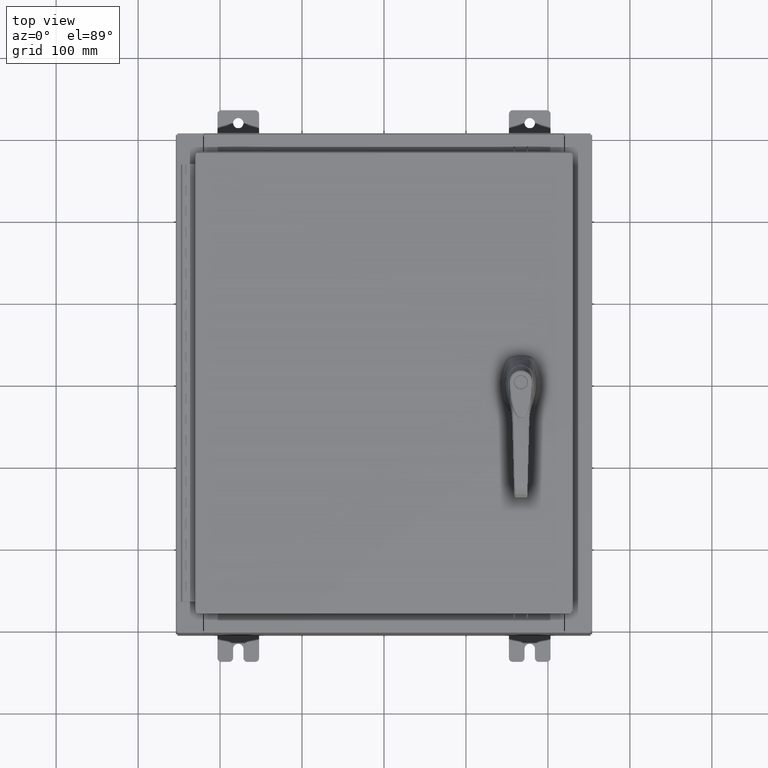
[diagram: clean part render]
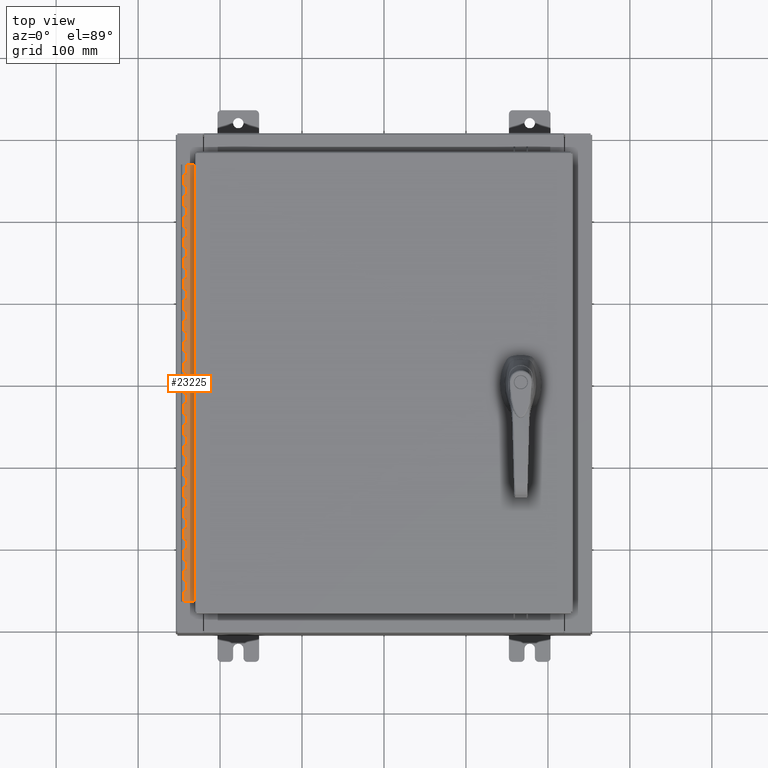
[diagram: same view with one face highlighted and labeled with its STEP entity id]
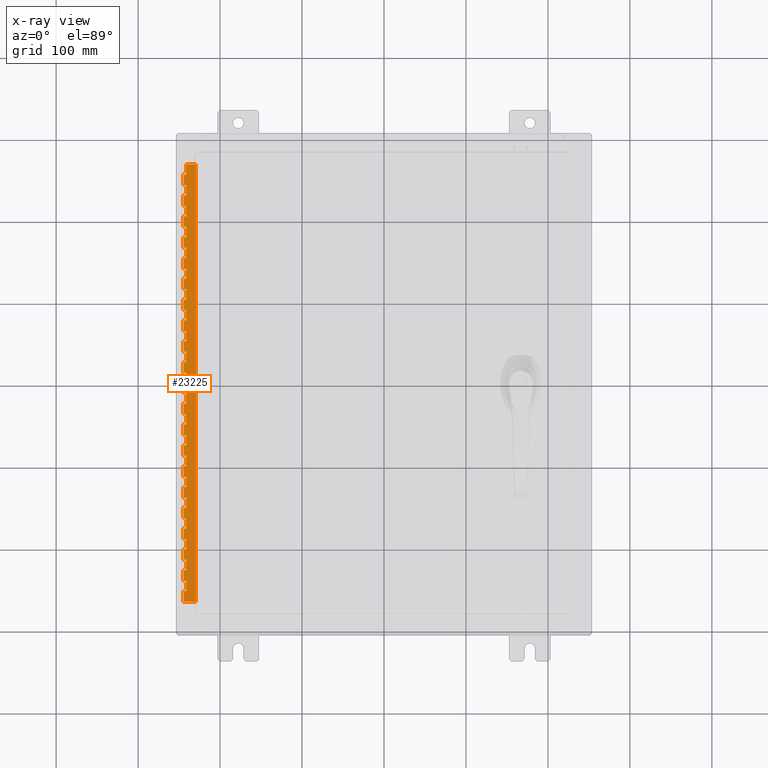
[diagram: x-ray of the same camera — body ghosted, the highlighted face saturated]
A machine part, top view. The second image highlights one B-rep face of the part: STEP entity #23225.
The next image is the same camera in x-ray: the body ghosted, the highlighted face saturated — about 0% of this face is hidden behind the body in this view.
In plain terms, the highlighted planar face has unit normal (-0, -0, 1).
Its self-contained STEP definition (entity closure, byte-faithful):
#529 = DIRECTION ( 'NONE',  ( 3.389037039080723100E-015, 1.000000000000000000, -0.0000000000000000000 ) ) ;
#591 = CARTESIAN_POINT ( 'NONE',  ( -0.6869999999999982800, 0.5504999999999997700, -15.50000000000000000 ) ) ;
#836 = VECTOR ( 'NONE', #529, 39.37007874015748100 ) ;
#868 = EDGE_CURVE ( 'NONE', #101145, #47534, #26574, .T. ) ;
#1041 = VERTEX_POINT ( 'NONE', #61592 ) ;
#1235 = VERTEX_POINT ( 'NONE', #93729 ) ;
#1546 = CARTESIAN_POINT ( 'NONE',  ( -0.6869999999999982800, 0.5504999999999997700, -1.000000000000000000 ) ) ;
#1853 = CARTESIAN_POINT ( 'NONE',  ( -0.6869999999999973900, 0.8004999999999995500, -7.499999999999999100 ) ) ;
#1857 = VERTEX_POINT ( 'NONE', #110923 ) ;
#1933 = CARTESIAN_POINT ( 'NONE',  ( -0.6869999999999978300, 0.6754999999999996600, -21.00000000000000000 ) ) ;
#1957 = CARTESIAN_POINT ( 'NONE',  ( -0.6869999999999982800, 0.5504999999999997700, -14.49999999999999800 ) ) ;
#2456 = CARTESIAN_POINT ( 'NONE',  ( -0.6869999999999978300, 0.6754999999999996600, -5.000000000000000000 ) ) ;
#2601 = DIRECTION ( 'NONE',  ( 0.0000000000000000000, -0.0000000000000000000, -1.000000000000000000 ) ) ;
#2613 = CARTESIAN_POINT ( 'NONE',  ( -0.6869999999999978300, 0.6754999999999996600, -10.50000000000000000 ) ) ;
#3268 = VECTOR ( 'NONE', #59709, 39.37007874015748100 ) ;
#3417 = ORIENTED_EDGE ( 'NONE', *, *, #48640, .F. ) ;
#3639 = CARTESIAN_POINT ( 'NONE',  ( -0.6869999999999982800, 0.5504999999999997700, -5.500000000000000000 ) ) ;
#3748 = ORIENTED_EDGE ( 'NONE', *, *, #76861, .F. ) ;
#3808 = EDGE_CURVE ( 'NONE', #83035, #109476, #102503, .T. ) ;
#4116 = CARTESIAN_POINT ( 'NONE',  ( -0.6869999999999973900, 0.8004999999999995500, -2.000000000000000000 ) ) ;
#4129 = DIRECTION ( 'NONE',  ( -3.389037039080723100E-015, -1.000000000000000000, 0.0000000000000000000 ) ) ;
#4130 = LINE ( 'NONE', #77484, #53568 ) ;
#4560 = VECTOR ( 'NONE', #36864, 39.37007874015748100 ) ;
#4997 = EDGE_CURVE ( 'NONE', #57328, #52799, #47526, .T. ) ;
#5001 = CARTESIAN_POINT ( 'NONE',  ( -0.6869999999999973900, 0.8004999999999995500, -17.99999999999999600 ) ) ;
#5126 = DIRECTION ( 'NONE',  ( 0.0000000000000000000, -0.0000000000000000000, -1.000000000000000000 ) ) ;
#5480 = EDGE_CURVE ( 'NONE', #63959, #29479, #19968, .T. ) ;
#5742 = ORIENTED_EDGE ( 'NONE', *, *, #47090, .T. ) ;
#5903 = ORIENTED_EDGE ( 'NONE', *, *, #23468, .F. ) ;
#5909 = VECTOR ( 'NONE', #65019, 39.37007874015748100 ) ;
#6241 = EDGE_CURVE ( 'NONE', #45362, #67447, #48765, .T. ) ;
#6351 = EDGE_CURVE ( 'NONE', #82024, #61237, #107649, .T. ) ;
#6624 = CARTESIAN_POINT ( 'NONE',  ( -0.6869999999999978300, 0.6754999999999996600, -8.000000000000000000 ) ) ;
#6690 = VERTEX_POINT ( 'NONE', #36080 ) ;
#6798 = DIRECTION ( 'NONE',  ( 3.389037039080723100E-015, 1.000000000000000000, -0.0000000000000000000 ) ) ;
#7037 = VERTEX_POINT ( 'NONE', #54532 ) ;
#7173 = ORIENTED_EDGE ( 'NONE', *, *, #37803, .F. ) ;
#7201 = CARTESIAN_POINT ( 'NONE',  ( -0.6869999999999973900, 0.8004999999999995500, -20.50000000000000400 ) ) ;
#7272 = ORIENTED_EDGE ( 'NONE', *, *, #109792, .F. ) ;
#7302 = CARTESIAN_POINT ( 'NONE',  ( -0.6869999999999973900, 0.8004999999999995500, -8.500000000000000000 ) ) ;
#7347 = EDGE_CURVE ( 'NONE', #87134, #73644, #84315, .T. ) ;
#7625 = CARTESIAN_POINT ( 'NONE',  ( -0.6869999999999982800, 0.5504999999999997700, -11.99999999999999800 ) ) ;
#7921 = CARTESIAN_POINT ( 'NONE',  ( -0.6869999999999982800, 0.5504999999999997700, -21.00000000000000000 ) ) ;
#8010 = ORIENTED_EDGE ( 'NONE', *, *, #31894, .F. ) ;
#8112 = VECTOR ( 'NONE', #103829, 39.37007874015748100 ) ;
#8336 = VECTOR ( 'NONE', #10817, 39.37007874015748100 ) ;
#8964 = DIRECTION ( 'NONE',  ( 0.0000000000000000000, 0.0000000000000000000, 1.000000000000000000 ) ) ;
#9033 = VERTEX_POINT ( 'NONE', #24518 ) ;
#9100 = ORIENTED_EDGE ( 'NONE', *, *, #81434, .F. ) ;
#9175 = EDGE_CURVE ( 'NONE', #1235, #111656, #81339, .T. ) ;
#9187 = ORIENTED_EDGE ( 'NONE', *, *, #56596, .F. ) ;
#9205 = VECTOR ( 'NONE', #105131, 39.37007874015748100 ) ;
#9301 = FACE_OUTER_BOUND ( 'NONE', #13561, .T. ) ;
#9383 = CARTESIAN_POINT ( 'NONE',  ( -0.6869999999999982800, 0.5504999999999997700, -19.50000000000000000 ) ) ;
#9402 = CARTESIAN_POINT ( 'NONE',  ( -0.6870000000000022800, -0.6245000000000003900, -21.00000000000000000 ) ) ;
#9577 = LINE ( 'NONE', #57266, #100170 ) ;
#9727 = CARTESIAN_POINT ( 'NONE',  ( -0.6869999999999982800, 0.5504999999999997700, -1.499999999999999800 ) ) ;
#10077 = VECTOR ( 'NONE', #29820, 39.37007874015748100 ) ;
#10124 = EDGE_CURVE ( 'NONE', #31112, #21334, #78481, .T. ) ;
#10195 = ORIENTED_EDGE ( 'NONE', *, *, #24938, .F. ) ;
#10249 = ORIENTED_EDGE ( 'NONE', *, *, #45272, .T. ) ;
#10446 = VERTEX_POINT ( 'NONE', #45325 ) ;
#10817 = DIRECTION ( 'NONE',  ( 0.0000000000000000000, 0.0000000000000000000, 1.000000000000000000 ) ) ;
#10884 = CARTESIAN_POINT ( 'NONE',  ( -0.6869999999999973900, 0.8004999999999995500, -17.50000000000000000 ) ) ;
#10973 = VECTOR ( 'NONE', #57352, 39.37007874015748100 ) ;
#10996 = ORIENTED_EDGE ( 'NONE', *, *, #112281, .F. ) ;
#11182 = LINE ( 'NONE', #93828, #57873 ) ;
#11207 = DIRECTION ( 'NONE',  ( -3.389037039080723100E-015, -1.000000000000000000, 0.0000000000000000000 ) ) ;
#11321 = ORIENTED_EDGE ( 'NONE', *, *, #46655, .T. ) ;
#11408 = CARTESIAN_POINT ( 'NONE',  ( -0.6869999999999978300, 0.6754999999999996600, -21.00000000000000000 ) ) ;
#11484 = VERTEX_POINT ( 'NONE', #109999 ) ;
#12521 = CARTESIAN_POINT ( 'NONE',  ( -0.6869999999999982800, 0.5504999999999997700, -6.000000000000000900 ) ) ;
#12584 = VECTOR ( 'NONE', #68197, 39.37007874015748100 ) ;
#12592 = VECTOR ( 'NONE', #78118, 39.37007874015748100 ) ;
#12948 = VERTEX_POINT ( 'NONE', #66702 ) ;
#13356 = ORIENTED_EDGE ( 'NONE', *, *, #22071, .F. ) ;
#13561 = EDGE_LOOP ( 'NONE', ( #89667, #58076, #9100, #92493, #11321, #25888, #59824, #55400, #10249, #23987, #19764, #38862, #24789, #69370, #51982, #49955, #82599, #113332, #100640, #86983, #41734, #47777, #84136, #7272, #46106, #111569, #77677, #10195, #54107, #54810, #63732, #30430, #25104, #40326, #31264, #20526, #55643, #103443, #7173, #93302, #51370, #92024, #13356, #37111, #93349, #55062, #70766, #45408, #110197, #74907, #8010, #3417, #103753, #5903, #76360, #70872, #82592, #68645, #53082, #29661, #86138, #32669, #3748, #37203, #5742, #109037, #80236, #83131, #20815, #41566, #102299, #20033, #18253, #14828, #34176, #20861, #62679, #100976, #86435, #16672, #109261, #32070, #57388, #9187, #65781, #10996 ) ) ;
#13754 = CARTESIAN_POINT ( 'NONE',  ( -0.6869999999999982800, 0.5504999999999997700, -11.00000000000000000 ) ) ;
#13832 = CARTESIAN_POINT ( 'NONE',  ( -0.6869999999999978300, 0.6754999999999996600, -21.00000000000000000 ) ) ;
#14376 = VECTOR ( 'NONE', #75546, 39.37007874015748100 ) ;
#14456 = CARTESIAN_POINT ( 'NONE',  ( -0.6870000000000022800, -0.6245000000000003900, -21.00000000000000000 ) ) ;
#14554 = VERTEX_POINT ( 'NONE', #16930 ) ;
#14592 = LINE ( 'NONE', #85897, #35228 ) ;
#14828 = ORIENTED_EDGE ( 'NONE', *, *, #72589, .F. ) ;
#15256 = CARTESIAN_POINT ( 'NONE',  ( -0.6869999999999973900, 0.8004999999999995500, -9.000000000000000000 ) ) ;
#15316 = EDGE_CURVE ( 'NONE', #45362, #63959, #38973, .T. ) ;
#15339 = VERTEX_POINT ( 'NONE', #110282 ) ;
#15340 = LINE ( 'NONE', #59364, #38747 ) ;
#15388 = VERTEX_POINT ( 'NONE', #67062 ) ;
#15575 = VECTOR ( 'NONE', #4129, 39.37007874015748100 ) ;
#15678 = LINE ( 'NONE', #26622, #36311 ) ;
#15802 = CARTESIAN_POINT ( 'NONE',  ( -0.6869999999999978300, 0.6754999999999996600, -21.00000000000000000 ) ) ;
#15900 = EDGE_CURVE ( 'NONE', #9033, #12948, #29250, .T. ) ;
#15997 = DIRECTION ( 'NONE',  ( -3.389037039080723100E-015, -1.000000000000000000, 0.0000000000000000000 ) ) ;
#16599 = EDGE_CURVE ( 'NONE', #86664, #57697, #104581, .T. ) ;
#16672 = ORIENTED_EDGE ( 'NONE', *, *, #69748, .F. ) ;
#16862 = EDGE_CURVE ( 'NONE', #63805, #15388, #44229, .T. ) ;
#16930 = CARTESIAN_POINT ( 'NONE',  ( -0.6869999999999982800, 0.5504999999999997700, -7.000000000000000000 ) ) ;
#16996 = CARTESIAN_POINT ( 'NONE',  ( -0.6869999999999973900, 0.8004999999999995500, -16.00000000000000000 ) ) ;
#17049 = EDGE_CURVE ( 'NONE', #6690, #109476, #15340, .T. ) ;
#17274 = VERTEX_POINT ( 'NONE', #78922 ) ;
#17348 = EDGE_CURVE ( 'NONE', #86664, #39463, #86725, .T. ) ;
#17376 = CARTESIAN_POINT ( 'NONE',  ( -0.6869999999999973900, 0.8004999999999995500, -20.00000000000000000 ) ) ;
#17757 = LINE ( 'NONE', #42966, #82312 ) ;
#17824 = DIRECTION ( 'NONE',  ( 0.0000000000000000000, -0.0000000000000000000, -1.000000000000000000 ) ) ;
#17983 = VERTEX_POINT ( 'NONE', #80097 ) ;
#18053 = VECTOR ( 'NONE', #23802, 39.37007874015748100 ) ;
#18253 = ORIENTED_EDGE ( 'NONE', *, *, #6241, .T. ) ;
#18271 = CARTESIAN_POINT ( 'NONE',  ( -0.6869999999999978300, 0.6754999999999996600, -12.49999999999999800 ) ) ;
#18903 = EDGE_CURVE ( 'NONE', #39463, #84651, #93414, .T. ) ;
#19003 = EDGE_CURVE ( 'NONE', #77030, #42950, #102938, .T. ) ;
#19695 = CARTESIAN_POINT ( 'NONE',  ( -0.6869999999999973900, 0.8004999999999995500, -4.000000000000000000 ) ) ;
#19764 = ORIENTED_EDGE ( 'NONE', *, *, #59808, .F. ) ;
#19822 = VECTOR ( 'NONE', #35693, 39.37007874015748100 ) ;
#19862 = EDGE_CURVE ( 'NONE', #87512, #23355, #64473, .T. ) ;
#19889 = VERTEX_POINT ( 'NONE', #7625 ) ;
#19930 = EDGE_CURVE ( 'NONE', #25043, #9033, #17757, .T. ) ;
#19968 = LINE ( 'NONE', #88497, #87271 ) ;
#19972 = CARTESIAN_POINT ( 'NONE',  ( -0.6869999999999982800, 0.5504999999999997700, -8.500000000000000000 ) ) ;
#20033 = ORIENTED_EDGE ( 'NONE', *, *, #15316, .F. ) ;
#20216 = VECTOR ( 'NONE', #76543, 39.37007874015748100 ) ;
#20274 = LINE ( 'NONE', #104371, #64227 ) ;
#20436 = VECTOR ( 'NONE', #56696, 39.37007874015748100 ) ;
#20526 = ORIENTED_EDGE ( 'NONE', *, *, #48817, .F. ) ;
#20815 = ORIENTED_EDGE ( 'NONE', *, *, #16599, .T. ) ;
#20861 = ORIENTED_EDGE ( 'NONE', *, *, #6351, .F. ) ;
#20872 = VECTOR ( 'NONE', #90439, 39.37007874015748100 ) ;
#20988 = VERTEX_POINT ( 'NONE', #60867 ) ;
#21158 = CARTESIAN_POINT ( 'NONE',  ( -0.6869999999999973900, 0.8004999999999995500, -11.00000000000000000 ) ) ;
#21176 = VERTEX_POINT ( 'NONE', #63149 ) ;
#21205 = CARTESIAN_POINT ( 'NONE',  ( -0.6869999999999982800, 0.5504999999999997700, -9.000000000000000000 ) ) ;
#21334 = VERTEX_POINT ( 'NONE', #63817 ) ;
#21383 = CARTESIAN_POINT ( 'NONE',  ( -0.6869999999999973900, 0.8004999999999995500, -6.499999999999999100 ) ) ;
#21457 = LINE ( 'NONE', #91227, #42109 ) ;
#21528 = DIRECTION ( 'NONE',  ( 3.389037039080723100E-015, 1.000000000000000000, -0.0000000000000000000 ) ) ;
#21546 = CARTESIAN_POINT ( 'NONE',  ( -0.6869999999999978300, 0.6754999999999996600, -11.00000000000000000 ) ) ;
#21909 = EDGE_CURVE ( 'NONE', #62743, #31410, #98668, .T. ) ;
#21985 = EDGE_CURVE ( 'NONE', #22464, #44216, #43809, .T. ) ;
#22056 = EDGE_CURVE ( 'NONE', #52439, #80590, #110966, .T. ) ;
#22071 = EDGE_CURVE ( 'NONE', #71525, #83606, #23215, .T. ) ;
#22076 = VECTOR ( 'NONE', #76273, 39.37007874015748100 ) ;
#22136 = LINE ( 'NONE', #113651, #88217 ) ;
#22336 = CARTESIAN_POINT ( 'NONE',  ( -0.6869999999999973900, 0.8004999999999995500, -1.000000000000000000 ) ) ;
#22464 = VERTEX_POINT ( 'NONE', #70297 ) ;
#22497 = CARTESIAN_POINT ( 'NONE',  ( -0.6869999999999978300, 0.6754999999999996600, -16.00000000000000000 ) ) ;
#22765 = CARTESIAN_POINT ( 'NONE',  ( -0.6869999999999982800, 0.5504999999999997700, -4.500000000000000000 ) ) ;
#22886 = LINE ( 'NONE', #63771, #25627 ) ;
#23046 = CARTESIAN_POINT ( 'NONE',  ( -0.6869999999999978300, 0.6754999999999996600, -3.500000000000000000 ) ) ;
#23215 = LINE ( 'NONE', #30241, #87731 ) ;
#23225 = ADVANCED_FACE ( 'NONE', ( #9301 ), #23285, .T. ) ;
#23285 = PLANE ( 'NONE',  #61825 ) ;
#23355 = VERTEX_POINT ( 'NONE', #77392 ) ;
#23468 = EDGE_CURVE ( 'NONE', #21176, #104463, #65640, .T. ) ;
#23520 = CARTESIAN_POINT ( 'NONE',  ( -0.6869999999999973900, 0.8004999999999995500, -7.000000000000000000 ) ) ;
#23636 = CARTESIAN_POINT ( 'NONE',  ( -0.6869999999999978300, 0.6754999999999996600, -11.99999999999999800 ) ) ;
#23694 = CARTESIAN_POINT ( 'NONE',  ( -0.6869999999999973900, 0.8004999999999995500, -2.500000000000000000 ) ) ;
#23752 = CARTESIAN_POINT ( 'NONE',  ( -0.6869999999999978300, 0.6754999999999996600, -2.999999999999999600 ) ) ;
#23802 = DIRECTION ( 'NONE',  ( 3.389037039080723100E-015, 1.000000000000000000, -0.0000000000000000000 ) ) ;
#23987 = ORIENTED_EDGE ( 'NONE', *, *, #10124, .F. ) ;
#24085 = EDGE_CURVE ( 'NONE', #31410, #98417, #99786, .T. ) ;
#24091 = DIRECTION ( 'NONE',  ( 3.389037039080723100E-015, 1.000000000000000000, -0.0000000000000000000 ) ) ;
#24270 = CARTESIAN_POINT ( 'NONE',  ( -0.6869999999999978300, 0.6754999999999996600, -11.50000000000000000 ) ) ;
#24415 = VERTEX_POINT ( 'NONE', #2613 ) ;
#24428 = VECTOR ( 'NONE', #96085, 39.37007874015748100 ) ;
#24518 = CARTESIAN_POINT ( 'NONE',  ( -0.6869999999999982800, 0.5504999999999997700, -10.00000000000000000 ) ) ;
#24779 = CARTESIAN_POINT ( 'NONE',  ( -0.6869999999999982800, 0.5504999999999997700, -4.500000000000000000 ) ) ;
#24789 = ORIENTED_EDGE ( 'NONE', *, *, #7347, .T. ) ;
#24896 = DIRECTION ( 'NONE',  ( 0.0000000000000000000, -0.0000000000000000000, -1.000000000000000000 ) ) ;
#24938 = EDGE_CURVE ( 'NONE', #75357, #31614, #55818, .T. ) ;
#25043 = VERTEX_POINT ( 'NONE', #72869 ) ;
#25102 = LINE ( 'NONE', #65320, #71807 ) ;
#25104 = ORIENTED_EDGE ( 'NONE', *, *, #81499, .T. ) ;
#25119 = EDGE_CURVE ( 'NONE', #10446, #101186, #21457, .T. ) ;
#25599 = DIRECTION ( 'NONE',  ( 0.0000000000000000000, 0.0000000000000000000, 1.000000000000000000 ) ) ;
#25627 = VECTOR ( 'NONE', #11207, 39.37007874015748100 ) ;
#25768 = DIRECTION ( 'NONE',  ( 0.0000000000000000000, -0.0000000000000000000, -1.000000000000000000 ) ) ;
#25888 = ORIENTED_EDGE ( 'NONE', *, *, #98177, .F. ) ;
#25979 = VECTOR ( 'NONE', #104080, 39.37007874015748100 ) ;
#26574 = LINE ( 'NONE', #9402, #3268 ) ;
#26622 = CARTESIAN_POINT ( 'NONE',  ( -0.6869999999999978300, 0.6754999999999996600, -21.00000000000000000 ) ) ;
#26821 = CARTESIAN_POINT ( 'NONE',  ( -0.6869999999999982800, 0.5504999999999997700, -11.50000000000000000 ) ) ;
#26833 = CARTESIAN_POINT ( 'NONE',  ( -0.6869999999999973900, 0.8004999999999995500, -11.50000000000000000 ) ) ;
#27729 = CARTESIAN_POINT ( 'NONE',  ( -0.6869999999999982800, 0.5504999999999997700, -1.499999999999999800 ) ) ;
#28488 = CARTESIAN_POINT ( 'NONE',  ( -0.6869999999999978300, 0.6754999999999996600, -21.00000000000000000 ) ) ;
#28509 = EDGE_CURVE ( 'NONE', #24415, #71525, #105842, .T. ) ;
#28797 = EDGE_CURVE ( 'NONE', #87512, #65449, #45497, .T. ) ;
#28895 = DIRECTION ( 'NONE',  ( 3.389037039080723100E-015, 1.000000000000000000, -0.0000000000000000000 ) ) ;
#29144 = EDGE_CURVE ( 'NONE', #7037, #51031, #52343, .T. ) ;
#29250 = LINE ( 'NONE', #56185, #5909 ) ;
#29263 = CARTESIAN_POINT ( 'NONE',  ( -0.6869999999999982800, 0.5504999999999997700, -14.00000000000000000 ) ) ;
#29479 = VERTEX_POINT ( 'NONE', #113251 ) ;
#29571 = CARTESIAN_POINT ( 'NONE',  ( -0.6869999999999978300, 0.6754999999999996600, -21.00000000000000000 ) ) ;
#29654 = CARTESIAN_POINT ( 'NONE',  ( -0.6869999999999982800, 0.5504999999999997700, -16.50000000000000000 ) ) ;
#29661 = ORIENTED_EDGE ( 'NONE', *, *, #21985, .F. ) ;
#29820 = DIRECTION ( 'NONE',  ( 0.0000000000000000000, -0.0000000000000000000, -1.000000000000000000 ) ) ;
#30126 = VECTOR ( 'NONE', #110501, 39.37007874015748100 ) ;
#30241 = CARTESIAN_POINT ( 'NONE',  ( -0.6869999999999982800, 0.5504999999999997700, -10.50000000000000000 ) ) ;
#30297 = LINE ( 'NONE', #67612, #76967 ) ;
#30374 = LINE ( 'NONE', #64741, #77049 ) ;
#30403 = CARTESIAN_POINT ( 'NONE',  ( -0.6869999999999973900, 0.8004999999999995500, -16.50000000000000000 ) ) ;
#30430 = ORIENTED_EDGE ( 'NONE', *, *, #21909, .F. ) ;
#30567 = DIRECTION ( 'NONE',  ( 3.389037039080723100E-015, 1.000000000000000000, -0.0000000000000000000 ) ) ;
#30639 = VERTEX_POINT ( 'NONE', #60888 ) ;
#30857 = CARTESIAN_POINT ( 'NONE',  ( -0.6869999999999978300, 0.6754999999999996600, -21.00000000000000000 ) ) ;
#30894 = EDGE_CURVE ( 'NONE', #96402, #23355, #59157, .T. ) ;
#31112 = VERTEX_POINT ( 'NONE', #99850 ) ;
#31193 = DIRECTION ( 'NONE',  ( -3.389037039080723100E-015, -1.000000000000000000, 0.0000000000000000000 ) ) ;
#31205 = EDGE_CURVE ( 'NONE', #1235, #97177, #39949, .T. ) ;
#31245 = CARTESIAN_POINT ( 'NONE',  ( -0.6869999999999982800, 0.5504999999999997700, -14.49999999999999800 ) ) ;
#31264 = ORIENTED_EDGE ( 'NONE', *, *, #36792, .F. ) ;
#31410 = VERTEX_POINT ( 'NONE', #105121 ) ;
#31614 = VERTEX_POINT ( 'NONE', #1957 ) ;
#31617 = DIRECTION ( 'NONE',  ( 0.0000000000000000000, -0.0000000000000000000, -1.000000000000000000 ) ) ;
#31894 = EDGE_CURVE ( 'NONE', #33388, #72678, #4130, .T. ) ;
#32070 = ORIENTED_EDGE ( 'NONE', *, *, #4997, .F. ) ;
#32147 = DIRECTION ( 'NONE',  ( 3.369016658928398200E-015, 1.000000000000000000, 0.0000000000000000000 ) ) ;
#32366 = CARTESIAN_POINT ( 'NONE',  ( -0.6869999999999982800, 0.5504999999999997700, -18.50000000000000000 ) ) ;
#32585 = VECTOR ( 'NONE', #25599, 39.37007874015748100 ) ;
#32669 = ORIENTED_EDGE ( 'NONE', *, *, #97536, .F. ) ;
#32844 = LINE ( 'NONE', #38144, #79513 ) ;
#33119 = VECTOR ( 'NONE', #30567, 39.37007874015748100 ) ;
#33388 = VERTEX_POINT ( 'NONE', #19972 ) ;
#34176 = ORIENTED_EDGE ( 'NONE', *, *, #106928, .F. ) ;
#34875 = EDGE_CURVE ( 'NONE', #31614, #6690, #109398, .T. ) ;
#34930 = DIRECTION ( 'NONE',  ( -3.389037039080723100E-015, -1.000000000000000000, 0.0000000000000000000 ) ) ;
#34938 = LINE ( 'NONE', #94792, #81613 ) ;
#34939 = VECTOR ( 'NONE', #59169, 39.37007874015748100 ) ;
#35027 = CARTESIAN_POINT ( 'NONE',  ( -0.6869999999999982800, 0.5504999999999997700, -13.50000000000000000 ) ) ;
#35062 = CARTESIAN_POINT ( 'NONE',  ( -0.6869999999999982800, 0.5504999999999997700, -20.00000000000000000 ) ) ;
#35228 = VECTOR ( 'NONE', #112225, 39.37007874015748100 ) ;
#35693 = DIRECTION ( 'NONE',  ( -3.389037039080723100E-015, -1.000000000000000000, 0.0000000000000000000 ) ) ;
#35814 = CARTESIAN_POINT ( 'NONE',  ( -0.6869999999999982800, 0.5504999999999997700, -17.00000000000000000 ) ) ;
#36080 = CARTESIAN_POINT ( 'NONE',  ( -0.6869999999999982800, 0.5504999999999997700, -14.99999999999999800 ) ) ;
#36141 = LINE ( 'NONE', #30403, #97803 ) ;
#36311 = VECTOR ( 'NONE', #8964, 39.37007874015748100 ) ;
#36417 = VERTEX_POINT ( 'NONE', #74655 ) ;
#36524 = VECTOR ( 'NONE', #87586, 39.37007874015748100 ) ;
#36739 = VECTOR ( 'NONE', #5126, 39.37007874015748100 ) ;
#36792 = EDGE_CURVE ( 'NONE', #37633, #108039, #103707, .T. ) ;
#36864 = DIRECTION ( 'NONE',  ( 0.0000000000000000000, 0.0000000000000000000, 1.000000000000000000 ) ) ;
#37111 = ORIENTED_EDGE ( 'NONE', *, *, #28509, .F. ) ;
#37203 = ORIENTED_EDGE ( 'NONE', *, *, #86766, .F. ) ;
#37414 = DIRECTION ( 'NONE',  ( 3.389037039080723100E-015, 1.000000000000000000, -0.0000000000000000000 ) ) ;
#37633 = VERTEX_POINT ( 'NONE', #113429 ) ;
#37746 = EDGE_CURVE ( 'NONE', #41305, #57328, #77598, .T. ) ;
#37803 = EDGE_CURVE ( 'NONE', #98275, #19889, #92641, .T. ) ;
#38144 = CARTESIAN_POINT ( 'NONE',  ( -0.6869999999999973900, 0.8004999999999995500, -2.999999999999999600 ) ) ;
#38542 = CARTESIAN_POINT ( 'NONE',  ( -0.6869999999999973900, 0.8004999999999995500, -0.5000000000000000000 ) ) ;
#38713 = DIRECTION ( 'NONE',  ( -3.389037039080723100E-015, -1.000000000000000000, 0.0000000000000000000 ) ) ;
#38747 = VECTOR ( 'NONE', #6798, 39.37007874015748100 ) ;
#38839 = EDGE_CURVE ( 'NONE', #72678, #15388, #63689, .T. ) ;
#38862 = ORIENTED_EDGE ( 'NONE', *, *, #59918, .F. ) ;
#38973 = LINE ( 'NONE', #39845, #15575 ) ;
#39034 = VECTOR ( 'NONE', #112636, 39.37007874015748100 ) ;
#39463 = VERTEX_POINT ( 'NONE', #24779 ) ;
#39693 = DIRECTION ( 'NONE',  ( 0.0000000000000000000, 0.0000000000000000000, 1.000000000000000000 ) ) ;
#39737 = CARTESIAN_POINT ( 'NONE',  ( -0.6869999999999973900, 0.8004999999999995500, -1.499999999999999800 ) ) ;
#39845 = CARTESIAN_POINT ( 'NONE',  ( -0.6869999999999973900, 0.8004999999999995500, -3.500000000000000000 ) ) ;
#39908 = VERTEX_POINT ( 'NONE', #32366 ) ;
#39949 = LINE ( 'NONE', #30857, #83848 ) ;
#40326 = ORIENTED_EDGE ( 'NONE', *, *, #65206, .F. ) ;
#40421 = CARTESIAN_POINT ( 'NONE',  ( -0.6869999999999973900, 0.8004999999999995500, -5.500000000000000000 ) ) ;
#40527 = CARTESIAN_POINT ( 'NONE',  ( -0.6869999999999982800, 0.5504999999999997700, -20.50000000000000400 ) ) ;
#40581 = LINE ( 'NONE', #50625, #107683 ) ;
#40740 = DIRECTION ( 'NONE',  ( 0.0000000000000000000, -0.0000000000000000000, -1.000000000000000000 ) ) ;
#40834 = CARTESIAN_POINT ( 'NONE',  ( -0.6869999999999978300, 0.6754999999999996600, -21.00000000000000000 ) ) ;
#41175 = EDGE_CURVE ( 'NONE', #64153, #52799, #15678, .T. ) ;
#41183 = VECTOR ( 'NONE', #103477, 39.37007874015748100 ) ;
#41305 = VERTEX_POINT ( 'NONE', #62281 ) ;
#41346 = DIRECTION ( 'NONE',  ( 0.0000000000000000000, -0.0000000000000000000, -1.000000000000000000 ) ) ;
#41453 = VECTOR ( 'NONE', #37414, 39.37007874015748100 ) ;
#41482 = LINE ( 'NONE', #93614, #18053 ) ;
#41535 = VECTOR ( 'NONE', #84078, 39.37007874015748100 ) ;
#41566 = ORIENTED_EDGE ( 'NONE', *, *, #106389, .F. ) ;
#41660 = CARTESIAN_POINT ( 'NONE',  ( -0.6869999999999978300, 0.6754999999999996600, -21.00000000000000000 ) ) ;
#41734 = ORIENTED_EDGE ( 'NONE', *, *, #111465, .T. ) ;
#42109 = VECTOR ( 'NONE', #38713, 39.37007874015748100 ) ;
#42313 = VECTOR ( 'NONE', #75829, 39.37007874015748100 ) ;
#42326 = DIRECTION ( 'NONE',  ( 3.389037039080723100E-015, 1.000000000000000000, -0.0000000000000000000 ) ) ;
#42950 = VERTEX_POINT ( 'NONE', #23636 ) ;
#42966 = CARTESIAN_POINT ( 'NONE',  ( -0.6869999999999982800, 0.5504999999999997700, -9.500000000000000000 ) ) ;
#42998 = VECTOR ( 'NONE', #62294, 39.37007874015748100 ) ;
#43182 = VERTEX_POINT ( 'NONE', #62674 ) ;
#43729 = CARTESIAN_POINT ( 'NONE',  ( -0.6869999999999982800, 0.5504999999999997700, -0.5000000000000000000 ) ) ;
#43809 = LINE ( 'NONE', #21383, #20436 ) ;
#44216 = VERTEX_POINT ( 'NONE', #64271 ) ;
#44229 = LINE ( 'NONE', #11408, #20872 ) ;
#44239 = LINE ( 'NONE', #5001, #64830 ) ;
#44387 = DIRECTION ( 'NONE',  ( -3.389037039080723100E-015, -1.000000000000000000, 0.0000000000000000000 ) ) ;
#45272 = EDGE_CURVE ( 'NONE', #10446, #21334, #67621, .T. ) ;
#45325 = CARTESIAN_POINT ( 'NONE',  ( -0.6869999999999978300, 0.6754999999999996600, -19.50000000000000000 ) ) ;
#45362 = VERTEX_POINT ( 'NONE', #23046 ) ;
#45408 = ORIENTED_EDGE ( 'NONE', *, *, #98370, .F. ) ;
#45497 = LINE ( 'NONE', #10884, #68882 ) ;
#46106 = ORIENTED_EDGE ( 'NONE', *, *, #3808, .T. ) ;
#46545 = LINE ( 'NONE', #7302, #61613 ) ;
#46655 = EDGE_CURVE ( 'NONE', #36417, #69839, #78385, .T. ) ;
#47047 = CARTESIAN_POINT ( 'NONE',  ( -0.6869999999999978300, 0.6754999999999996600, -21.00000000000000000 ) ) ;
#47090 = EDGE_CURVE ( 'NONE', #43182, #56503, #30297, .T. ) ;
#47526 = LINE ( 'NONE', #22336, #836 ) ;
#47534 = VERTEX_POINT ( 'NONE', #7921 ) ;
#47777 = ORIENTED_EDGE ( 'NONE', *, *, #97655, .F. ) ;
#48251 = DIRECTION ( 'NONE',  ( 3.389037039080723100E-015, 1.000000000000000000, -0.0000000000000000000 ) ) ;
#48640 = EDGE_CURVE ( 'NONE', #17983, #33388, #46545, .T. ) ;
#48765 = LINE ( 'NONE', #104982, #92652 ) ;
#48817 = EDGE_CURVE ( 'NONE', #77030, #37633, #79498, .T. ) ;
#49296 = CARTESIAN_POINT ( 'NONE',  ( -0.6869999999999978300, 0.6754999999999996600, -20.00000000000000000 ) ) ;
#49804 = CARTESIAN_POINT ( 'NONE',  ( -0.6869999999999973900, 0.8004999999999995500, -18.50000000000000000 ) ) ;
#49955 = ORIENTED_EDGE ( 'NONE', *, *, #28797, .F. ) ;
#50227 = CARTESIAN_POINT ( 'NONE',  ( -0.6869999999999978300, 0.6754999999999996600, -21.00000000000000000 ) ) ;
#50262 = CARTESIAN_POINT ( 'NONE',  ( -0.6869999999999998300, 0.07549999999999991400, -21.00000000000000000 ) ) ;
#50465 = CARTESIAN_POINT ( 'NONE',  ( -0.6869999999999973900, 0.8004999999999995500, -6.000000000000000900 ) ) ;
#50588 = CARTESIAN_POINT ( 'NONE',  ( -0.6869999999999978300, 0.6754999999999996600, -21.00000000000000000 ) ) ;
#50625 = CARTESIAN_POINT ( 'NONE',  ( -0.6869999999999982800, 0.5504999999999997700, -5.500000000000000000 ) ) ;
#50690 = CARTESIAN_POINT ( 'NONE',  ( -0.6869999999999982800, 0.5504999999999997700, -12.99999999999999800 ) ) ;
#51031 = VERTEX_POINT ( 'NONE', #57912 ) ;
#51259 = VECTOR ( 'NONE', #96554, 39.37007874015748100 ) ;
#51370 = ORIENTED_EDGE ( 'NONE', *, *, #72337, .T. ) ;
#51777 = DIRECTION ( 'NONE',  ( 0.0000000000000000000, -0.0000000000000000000, -1.000000000000000000 ) ) ;
#51982 = ORIENTED_EDGE ( 'NONE', *, *, #88355, .F. ) ;
#52343 = LINE ( 'NONE', #15802, #72958 ) ;
#52439 = VERTEX_POINT ( 'NONE', #70117 ) ;
#52799 = VERTEX_POINT ( 'NONE', #74290 ) ;
#53082 = ORIENTED_EDGE ( 'NONE', *, *, #100221, .F. ) ;
#53280 = LINE ( 'NONE', #21158, #73905 ) ;
#53392 = VECTOR ( 'NONE', #34930, 39.37007874015748100 ) ;
#53568 = VECTOR ( 'NONE', #24896, 39.37007874015748100 ) ;
#54044 = EDGE_CURVE ( 'NONE', #112204, #98275, #92612, .T. ) ;
#54107 = ORIENTED_EDGE ( 'NONE', *, *, #95370, .T. ) ;
#54224 = VECTOR ( 'NONE', #61340, 39.37007874015748100 ) ;
#54532 = CARTESIAN_POINT ( 'NONE',  ( -0.6869999999999978300, 0.6754999999999996600, -0.5000000000000000000 ) ) ;
#54640 = DIRECTION ( 'NONE',  ( -3.389037039080723100E-015, -1.000000000000000000, 0.0000000000000000000 ) ) ;
#54801 = CARTESIAN_POINT ( 'NONE',  ( -0.6869999999999978300, 0.6754999999999996600, -7.000000000000000000 ) ) ;
#54810 = ORIENTED_EDGE ( 'NONE', *, *, #107935, .F. ) ;
#55062 = ORIENTED_EDGE ( 'NONE', *, *, #15900, .F. ) ;
#55122 = VECTOR ( 'NONE', #21528, 39.37007874015748100 ) ;
#55233 = VECTOR ( 'NONE', #73895, 39.37007874015748100 ) ;
#55400 = ORIENTED_EDGE ( 'NONE', *, *, #25119, .F. ) ;
#55643 = ORIENTED_EDGE ( 'NONE', *, *, #19003, .T. ) ;
#55818 = LINE ( 'NONE', #80898, #96922 ) ;
#56185 = CARTESIAN_POINT ( 'NONE',  ( -0.6869999999999973900, 0.8004999999999995500, -10.00000000000000000 ) ) ;
#56503 = VERTEX_POINT ( 'NONE', #2456 ) ;
#56596 = EDGE_CURVE ( 'NONE', #7037, #41305, #87038, .T. ) ;
#56620 = CARTESIAN_POINT ( 'NONE',  ( -0.6869999999999982800, 0.5504999999999997700, -3.500000000000000000 ) ) ;
#56696 = DIRECTION ( 'NONE',  ( -3.389037039080723100E-015, -1.000000000000000000, 0.0000000000000000000 ) ) ;
#57266 = CARTESIAN_POINT ( 'NONE',  ( -0.6869999999999973900, 0.8004999999999995500, -15.50000000000000000 ) ) ;
#57328 = VERTEX_POINT ( 'NONE', #1546 ) ;
#57352 = DIRECTION ( 'NONE',  ( -3.389037039080723100E-015, -1.000000000000000000, 0.0000000000000000000 ) ) ;
#57388 = ORIENTED_EDGE ( 'NONE', *, *, #37746, .F. ) ;
#57396 = EDGE_CURVE ( 'NONE', #22464, #59928, #77372, .T. ) ;
#57570 = DIRECTION ( 'NONE',  ( 3.389037039080723100E-015, 1.000000000000000000, -0.0000000000000000000 ) ) ;
#57658 = CARTESIAN_POINT ( 'NONE',  ( -0.6869999999999978300, 0.6754999999999996600, -21.00000000000000000 ) ) ;
#57697 = VERTEX_POINT ( 'NONE', #105627 ) ;
#57873 = VECTOR ( 'NONE', #41346, 39.37007874015748100 ) ;
#57912 = CARTESIAN_POINT ( 'NONE',  ( -0.6869999999999978300, 0.6754999999999996600, 0.0000000000000000000 ) ) ;
#58076 = ORIENTED_EDGE ( 'NONE', *, *, #868, .T. ) ;
#58729 = LINE ( 'NONE', #50227, #73891 ) ;
#58820 = VECTOR ( 'NONE', #108486, 39.37007874015748100 ) ;
#59062 = VECTOR ( 'NONE', #31617, 39.37007874015748100 ) ;
#59157 = LINE ( 'NONE', #83121, #33119 ) ;
#59169 = DIRECTION ( 'NONE',  ( 3.389037039080723100E-015, 1.000000000000000000, -0.0000000000000000000 ) ) ;
#59364 = CARTESIAN_POINT ( 'NONE',  ( -0.6869999999999973900, 0.8004999999999995500, -14.99999999999999800 ) ) ;
#59709 = DIRECTION ( 'NONE',  ( 3.369016658928398200E-015, 1.000000000000000000, 0.0000000000000000000 ) ) ;
#59808 = EDGE_CURVE ( 'NONE', #39908, #31112, #30374, .T. ) ;
#59824 = ORIENTED_EDGE ( 'NONE', *, *, #104859, .F. ) ;
#59918 = EDGE_CURVE ( 'NONE', #87134, #39908, #92089, .T. ) ;
#59928 = VERTEX_POINT ( 'NONE', #93853 ) ;
#60174 = CARTESIAN_POINT ( 'NONE',  ( -0.6869999999999973900, 0.8004999999999995500, -11.99999999999999800 ) ) ;
#60392 = CARTESIAN_POINT ( 'NONE',  ( -0.6869999999999978300, 0.6754999999999996600, -21.00000000000000000 ) ) ;
#60867 = CARTESIAN_POINT ( 'NONE',  ( -0.6869999999999978300, 0.6754999999999996600, -14.00000000000000000 ) ) ;
#60888 = CARTESIAN_POINT ( 'NONE',  ( -0.6869999999999982800, 0.5504999999999997700, -20.50000000000000400 ) ) ;
#61005 = CARTESIAN_POINT ( 'NONE',  ( -0.6869999999999982800, 0.5504999999999997700, -17.99999999999999600 ) ) ;
#61237 = VERTEX_POINT ( 'NONE', #84466 ) ;
#61340 = DIRECTION ( 'NONE',  ( 0.0000000000000000000, -0.0000000000000000000, -1.000000000000000000 ) ) ;
#61383 = VECTOR ( 'NONE', #69623, 39.37007874015748100 ) ;
#61592 = CARTESIAN_POINT ( 'NONE',  ( -0.6869999999999982800, 0.5504999999999997700, -2.999999999999999600 ) ) ;
#61613 = VECTOR ( 'NONE', #86355, 39.37007874015748100 ) ;
#61825 = AXIS2_PLACEMENT_3D ( 'NONE', #14456, #84693, #32147 ) ;
#62100 = DIRECTION ( 'NONE',  ( 0.0000000000000000000, -0.0000000000000000000, -1.000000000000000000 ) ) ;
#62277 = VECTOR ( 'NONE', #15997, 39.37007874015748100 ) ;
#62281 = CARTESIAN_POINT ( 'NONE',  ( -0.6869999999999982800, 0.5504999999999997700, -0.5000000000000000000 ) ) ;
#62294 = DIRECTION ( 'NONE',  ( 0.0000000000000000000, -0.0000000000000000000, -1.000000000000000000 ) ) ;
#62674 = CARTESIAN_POINT ( 'NONE',  ( -0.6869999999999978300, 0.6754999999999996600, -5.500000000000000000 ) ) ;
#62679 = ORIENTED_EDGE ( 'NONE', *, *, #110878, .T. ) ;
#62743 = VERTEX_POINT ( 'NONE', #78434 ) ;
#62830 = CARTESIAN_POINT ( 'NONE',  ( -0.6869999999999978300, 0.6754999999999996600, -14.49999999999999800 ) ) ;
#63149 = CARTESIAN_POINT ( 'NONE',  ( -0.6869999999999982800, 0.5504999999999997700, -8.000000000000000000 ) ) ;
#63460 = EDGE_CURVE ( 'NONE', #17983, #104463, #58729, .T. ) ;
#63538 = LINE ( 'NONE', #9727, #42998 ) ;
#63675 = VECTOR ( 'NONE', #99825, 39.37007874015748100 ) ;
#63689 = LINE ( 'NONE', #15256, #104797 ) ;
#63732 = ORIENTED_EDGE ( 'NONE', *, *, #24085, .F. ) ;
#63771 = CARTESIAN_POINT ( 'NONE',  ( -0.6869999999999973900, 0.8004999999999995500, -9.500000000000000000 ) ) ;
#63805 = VERTEX_POINT ( 'NONE', #97631 ) ;
#63817 = CARTESIAN_POINT ( 'NONE',  ( -0.6869999999999978300, 0.6754999999999996600, -19.00000000000000000 ) ) ;
#63959 = VERTEX_POINT ( 'NONE', #56620 ) ;
#64153 = VERTEX_POINT ( 'NONE', #66970 ) ;
#64227 = VECTOR ( 'NONE', #95206, 39.37007874015748100 ) ;
#64271 = CARTESIAN_POINT ( 'NONE',  ( -0.6869999999999982800, 0.5504999999999997700, -6.499999999999999100 ) ) ;
#64388 = VECTOR ( 'NONE', #48251, 39.37007874015748100 ) ;
#64473 = LINE ( 'NONE', #111878, #41183 ) ;
#64741 = CARTESIAN_POINT ( 'NONE',  ( -0.6869999999999982800, 0.5504999999999997700, -18.50000000000000000 ) ) ;
#64830 = VECTOR ( 'NONE', #57570, 39.37007874015748100 ) ;
#64944 = CARTESIAN_POINT ( 'NONE',  ( -0.6869999999999978300, 0.6754999999999996600, -2.500000000000000000 ) ) ;
#65019 = DIRECTION ( 'NONE',  ( 3.389037039080723100E-015, 1.000000000000000000, -0.0000000000000000000 ) ) ;
#65081 = LINE ( 'NONE', #7201, #62277 ) ;
#65206 = EDGE_CURVE ( 'NONE', #108039, #1857, #14592, .T. ) ;
#65320 = CARTESIAN_POINT ( 'NONE',  ( -0.6869999999999982800, 0.5504999999999997700, -19.50000000000000000 ) ) ;
#65449 = VERTEX_POINT ( 'NONE', #81602 ) ;
#65638 = LINE ( 'NONE', #40527, #42313 ) ;
#65640 = LINE ( 'NONE', #86589, #24428 ) ;
#65781 = ORIENTED_EDGE ( 'NONE', *, *, #29144, .T. ) ;
#65882 = DIRECTION ( 'NONE',  ( 0.0000000000000000000, 0.0000000000000000000, 1.000000000000000000 ) ) ;
#66524 = EDGE_CURVE ( 'NONE', #86720, #96402, #78706, .T. ) ;
#66702 = CARTESIAN_POINT ( 'NONE',  ( -0.6869999999999978300, 0.6754999999999996600, -10.00000000000000000 ) ) ;
#66970 = CARTESIAN_POINT ( 'NONE',  ( -0.6869999999999978300, 0.6754999999999996600, -1.499999999999999800 ) ) ;
#67060 = CARTESIAN_POINT ( 'NONE',  ( -0.6869999999999982800, 0.5504999999999997700, -7.499999999999999100 ) ) ;
#67062 = CARTESIAN_POINT ( 'NONE',  ( -0.6869999999999978300, 0.6754999999999996600, -9.000000000000000000 ) ) ;
#67447 = VERTEX_POINT ( 'NONE', #23752 ) ;
#67542 = LINE ( 'NONE', #19695, #41453 ) ;
#67612 = CARTESIAN_POINT ( 'NONE',  ( -0.6869999999999978300, 0.6754999999999996600, -21.00000000000000000 ) ) ;
#67621 = LINE ( 'NONE', #13832, #41535 ) ;
#67877 = DIRECTION ( 'NONE',  ( 0.0000000000000000000, 0.0000000000000000000, 1.000000000000000000 ) ) ;
#68197 = DIRECTION ( 'NONE',  ( 0.0000000000000000000, 0.0000000000000000000, 1.000000000000000000 ) ) ;
#68645 = ORIENTED_EDGE ( 'NONE', *, *, #77773, .F. ) ;
#68882 = VECTOR ( 'NONE', #54640, 39.37007874015748100 ) ;
#69358 = VECTOR ( 'NONE', #62100, 39.37007874015748100 ) ;
#69370 = ORIENTED_EDGE ( 'NONE', *, *, #92032, .F. ) ;
#69552 = CARTESIAN_POINT ( 'NONE',  ( -0.6869999999999982800, 0.5504999999999997700, -6.499999999999999100 ) ) ;
#69623 = DIRECTION ( 'NONE',  ( 3.389037039080723100E-015, 1.000000000000000000, -0.0000000000000000000 ) ) ;
#69691 = CARTESIAN_POINT ( 'NONE',  ( -0.6869999999999973900, 0.8004999999999995500, -10.50000000000000000 ) ) ;
#69748 = EDGE_CURVE ( 'NONE', #64153, #81814, #83779, .T. ) ;
#69839 = VERTEX_POINT ( 'NONE', #49296 ) ;
#70117 = CARTESIAN_POINT ( 'NONE',  ( -0.6869999999999982800, 0.5504999999999997700, -2.000000000000000000 ) ) ;
#70165 = CARTESIAN_POINT ( 'NONE',  ( -0.6869999999999982800, 0.5504999999999997700, -17.50000000000000000 ) ) ;
#70180 = VERTEX_POINT ( 'NONE', #35062 ) ;
#70297 = CARTESIAN_POINT ( 'NONE',  ( -0.6869999999999978300, 0.6754999999999996600, -6.499999999999999100 ) ) ;
#70766 = ORIENTED_EDGE ( 'NONE', *, *, #19930, .F. ) ;
#70872 = ORIENTED_EDGE ( 'NONE', *, *, #9175, .F. ) ;
#71525 = VERTEX_POINT ( 'NONE', #86868 ) ;
#71807 = VECTOR ( 'NONE', #40740, 39.37007874015748100 ) ;
#72337 = EDGE_CURVE ( 'NONE', #112204, #107707, #113710, .T. ) ;
#72589 = EDGE_CURVE ( 'NONE', #1041, #67447, #32844, .T. ) ;
#72659 = DIRECTION ( 'NONE',  ( 0.0000000000000000000, -0.0000000000000000000, -1.000000000000000000 ) ) ;
#72664 = VECTOR ( 'NONE', #111826, 39.37007874015748100 ) ;
#72678 = VERTEX_POINT ( 'NONE', #21205 ) ;
#72869 = CARTESIAN_POINT ( 'NONE',  ( -0.6869999999999982800, 0.5504999999999997700, -9.500000000000000000 ) ) ;
#72958 = VECTOR ( 'NONE', #77233, 39.37007874015748100 ) ;
#73644 = VERTEX_POINT ( 'NONE', #76686 ) ;
#73774 = DIRECTION ( 'NONE',  ( 3.389037039080723100E-015, 1.000000000000000000, -0.0000000000000000000 ) ) ;
#73891 = VECTOR ( 'NONE', #67877, 39.37007874015748100 ) ;
#73895 = DIRECTION ( 'NONE',  ( -3.389037039080723100E-015, -1.000000000000000000, 0.0000000000000000000 ) ) ;
#73905 = VECTOR ( 'NONE', #73774, 39.37007874015748100 ) ;
#74290 = CARTESIAN_POINT ( 'NONE',  ( -0.6869999999999978300, 0.6754999999999996600, -1.000000000000000000 ) ) ;
#74590 = LINE ( 'NONE', #70165, #51259 ) ;
#74655 = CARTESIAN_POINT ( 'NONE',  ( -0.6869999999999978300, 0.6754999999999996600, -20.50000000000000400 ) ) ;
#74907 = ORIENTED_EDGE ( 'NONE', *, *, #38839, .F. ) ;
#75344 = DIRECTION ( 'NONE',  ( -3.389037039080723100E-015, -1.000000000000000000, 0.0000000000000000000 ) ) ;
#75357 = VERTEX_POINT ( 'NONE', #62830 ) ;
#75546 = DIRECTION ( 'NONE',  ( -3.389037039080723100E-015, -1.000000000000000000, 0.0000000000000000000 ) ) ;
#75829 = DIRECTION ( 'NONE',  ( 0.0000000000000000000, -0.0000000000000000000, -1.000000000000000000 ) ) ;
#76273 = DIRECTION ( 'NONE',  ( -3.389037039080723100E-015, -1.000000000000000000, 0.0000000000000000000 ) ) ;
#76360 = ORIENTED_EDGE ( 'NONE', *, *, #101885, .F. ) ;
#76543 = DIRECTION ( 'NONE',  ( 3.389037039080723100E-015, 1.000000000000000000, -0.0000000000000000000 ) ) ;
#76686 = CARTESIAN_POINT ( 'NONE',  ( -0.6869999999999978300, 0.6754999999999996600, -17.99999999999999600 ) ) ;
#76861 = EDGE_CURVE ( 'NONE', #108929, #94673, #40581, .T. ) ;
#76967 = VECTOR ( 'NONE', #93627, 39.37007874015748100 ) ;
#77030 = VERTEX_POINT ( 'NONE', #18271 ) ;
#77049 = VECTOR ( 'NONE', #2601, 39.37007874015748100 ) ;
#77233 = DIRECTION ( 'NONE',  ( 0.0000000000000000000, 0.0000000000000000000, 1.000000000000000000 ) ) ;
#77372 = LINE ( 'NONE', #1933, #4560 ) ;
#77392 = CARTESIAN_POINT ( 'NONE',  ( -0.6869999999999978300, 0.6754999999999996600, -17.00000000000000000 ) ) ;
#77484 = CARTESIAN_POINT ( 'NONE',  ( -0.6869999999999982800, 0.5504999999999997700, -8.500000000000000000 ) ) ;
#77598 = LINE ( 'NONE', #43729, #54224 ) ;
#77661 = CARTESIAN_POINT ( 'NONE',  ( -0.6869999999999982800, 0.5504999999999997700, -12.49999999999999800 ) ) ;
#77677 = ORIENTED_EDGE ( 'NONE', *, *, #34875, .F. ) ;
#77773 = EDGE_CURVE ( 'NONE', #14554, #97177, #81614, .T. ) ;
#77846 = VECTOR ( 'NONE', #105184, 39.37007874015748100 ) ;
#78107 = EDGE_CURVE ( 'NONE', #19889, #42950, #108919, .T. ) ;
#78118 = DIRECTION ( 'NONE',  ( -3.389037039080723100E-015, -1.000000000000000000, 0.0000000000000000000 ) ) ;
#78385 = LINE ( 'NONE', #28488, #8336 ) ;
#78434 = CARTESIAN_POINT ( 'NONE',  ( -0.6869999999999978300, 0.6754999999999996600, -13.50000000000000000 ) ) ;
#78481 = LINE ( 'NONE', #105381, #55122 ) ;
#78706 = LINE ( 'NONE', #29654, #101971 ) ;
#78922 = CARTESIAN_POINT ( 'NONE',  ( -0.6869999999999982800, 0.5504999999999997700, -16.00000000000000000 ) ) ;
#79498 = LINE ( 'NONE', #96233, #53392 ) ;
#79513 = VECTOR ( 'NONE', #28895, 39.37007874015748100 ) ;
#79694 = VECTOR ( 'NONE', #93332, 39.37007874015748100 ) ;
#80097 = CARTESIAN_POINT ( 'NONE',  ( -0.6869999999999978300, 0.6754999999999996600, -8.500000000000000000 ) ) ;
#80236 = ORIENTED_EDGE ( 'NONE', *, *, #18903, .F. ) ;
#80590 = VERTEX_POINT ( 'NONE', #109513 ) ;
#80898 = CARTESIAN_POINT ( 'NONE',  ( -0.6869999999999973900, 0.8004999999999995500, -14.49999999999999800 ) ) ;
#81326 = VECTOR ( 'NONE', #103128, 39.37007874015748100 ) ;
#81339 = LINE ( 'NONE', #1853, #55233 ) ;
#81434 = EDGE_CURVE ( 'NONE', #30639, #47534, #65638, .T. ) ;
#81499 = EDGE_CURVE ( 'NONE', #62743, #1857, #106668, .T. ) ;
#81602 = CARTESIAN_POINT ( 'NONE',  ( -0.6869999999999982800, 0.5504999999999997700, -17.50000000000000000 ) ) ;
#81613 = VECTOR ( 'NONE', #42326, 39.37007874015748100 ) ;
#81614 = LINE ( 'NONE', #23520, #34939 ) ;
#81814 = VERTEX_POINT ( 'NONE', #27729 ) ;
#82024 = VERTEX_POINT ( 'NONE', #64944 ) ;
#82206 = DIRECTION ( 'NONE',  ( 0.0000000000000000000, -0.0000000000000000000, -1.000000000000000000 ) ) ;
#82312 = VECTOR ( 'NONE', #51777, 39.37007874015748100 ) ;
#82592 = ORIENTED_EDGE ( 'NONE', *, *, #31205, .T. ) ;
#82599 = ORIENTED_EDGE ( 'NONE', *, *, #19862, .T. ) ;
#82603 = LINE ( 'NONE', #94587, #12584 ) ;
#83035 = VERTEX_POINT ( 'NONE', #94777 ) ;
#83121 = CARTESIAN_POINT ( 'NONE',  ( -0.6869999999999973900, 0.8004999999999995500, -17.00000000000000000 ) ) ;
#83131 = ORIENTED_EDGE ( 'NONE', *, *, #17348, .F. ) ;
#83463 = VECTOR ( 'NONE', #102925, 39.37007874015748100 ) ;
#83606 = VERTEX_POINT ( 'NONE', #13754 ) ;
#83779 = LINE ( 'NONE', #39737, #10973 ) ;
#83848 = VECTOR ( 'NONE', #39693, 39.37007874015748100 ) ;
#84078 = DIRECTION ( 'NONE',  ( 0.0000000000000000000, 0.0000000000000000000, 1.000000000000000000 ) ) ;
#84136 = ORIENTED_EDGE ( 'NONE', *, *, #92672, .F. ) ;
#84140 = CARTESIAN_POINT ( 'NONE',  ( -0.6869999999999982800, 0.5504999999999997700, -16.50000000000000000 ) ) ;
#84315 = LINE ( 'NONE', #47047, #104808 ) ;
#84466 = CARTESIAN_POINT ( 'NONE',  ( -0.6869999999999982800, 0.5504999999999997700, -2.500000000000000000 ) ) ;
#84651 = VERTEX_POINT ( 'NONE', #113111 ) ;
#84693 = DIRECTION ( 'NONE',  ( 1.000000000000000000, -3.369016658928398200E-015, 0.0000000000000000000 ) ) ;
#84782 = LINE ( 'NONE', #16996, #61383 ) ;
#85830 = VERTEX_POINT ( 'NONE', #61005 ) ;
#85897 = CARTESIAN_POINT ( 'NONE',  ( -0.6869999999999973900, 0.8004999999999995500, -12.99999999999999800 ) ) ;
#86138 = ORIENTED_EDGE ( 'NONE', *, *, #57396, .T. ) ;
#86355 = DIRECTION ( 'NONE',  ( -3.389037039080723100E-015, -1.000000000000000000, 0.0000000000000000000 ) ) ;
#86435 = ORIENTED_EDGE ( 'NONE', *, *, #88621, .F. ) ;
#86440 = VERTEX_POINT ( 'NONE', #22497 ) ;
#86526 = LINE ( 'NONE', #50262, #112486 ) ;
#86589 = CARTESIAN_POINT ( 'NONE',  ( -0.6869999999999973900, 0.8004999999999995500, -8.000000000000000000 ) ) ;
#86664 = VERTEX_POINT ( 'NONE', #100949 ) ;
#86720 = VERTEX_POINT ( 'NONE', #84140 ) ;
#86725 = LINE ( 'NONE', #105659, #109946 ) ;
#86766 = EDGE_CURVE ( 'NONE', #43182, #108929, #113062, .T. ) ;
#86782 = CARTESIAN_POINT ( 'NONE',  ( -0.6869999999999978300, 0.6754999999999996600, -18.50000000000000000 ) ) ;
#86858 = EDGE_CURVE ( 'NONE', #84651, #56503, #34938, .T. ) ;
#86868 = CARTESIAN_POINT ( 'NONE',  ( -0.6869999999999982800, 0.5504999999999997700, -10.50000000000000000 ) ) ;
#86983 = ORIENTED_EDGE ( 'NONE', *, *, #104710, .F. ) ;
#87038 = LINE ( 'NONE', #38542, #63675 ) ;
#87134 = VERTEX_POINT ( 'NONE', #86782 ) ;
#87271 = VECTOR ( 'NONE', #72659, 39.37007874015748100 ) ;
#87512 = VERTEX_POINT ( 'NONE', #104642 ) ;
#87586 = DIRECTION ( 'NONE',  ( 0.0000000000000000000, -0.0000000000000000000, -1.000000000000000000 ) ) ;
#87670 = LINE ( 'NONE', #29571, #58820 ) ;
#87731 = VECTOR ( 'NONE', #109512, 39.37007874015748100 ) ;
#88217 = VECTOR ( 'NONE', #17824, 39.37007874015748100 ) ;
#88355 = EDGE_CURVE ( 'NONE', #65449, #85830, #74590, .T. ) ;
#88497 = CARTESIAN_POINT ( 'NONE',  ( -0.6869999999999982800, 0.5504999999999997700, -3.500000000000000000 ) ) ;
#88621 = EDGE_CURVE ( 'NONE', #81814, #52439, #63538, .T. ) ;
#88737 = CARTESIAN_POINT ( 'NONE',  ( -0.6869999999999982800, 0.5504999999999997700, -11.50000000000000000 ) ) ;
#89667 = ORIENTED_EDGE ( 'NONE', *, *, #94323, .F. ) ;
#89918 = VECTOR ( 'NONE', #25768, 39.37007874015748100 ) ;
#90126 = EDGE_CURVE ( 'NONE', #24415, #12948, #82603, .T. ) ;
#90439 = DIRECTION ( 'NONE',  ( 0.0000000000000000000, 0.0000000000000000000, 1.000000000000000000 ) ) ;
#90796 = CARTESIAN_POINT ( 'NONE',  ( -0.6869999999999982800, 0.5504999999999997700, -7.499999999999999100 ) ) ;
#91227 = CARTESIAN_POINT ( 'NONE',  ( -0.6869999999999973900, 0.8004999999999995500, -19.50000000000000000 ) ) ;
#92024 = ORIENTED_EDGE ( 'NONE', *, *, #96541, .F. ) ;
#92032 = EDGE_CURVE ( 'NONE', #85830, #73644, #44239, .T. ) ;
#92089 = LINE ( 'NONE', #49804, #22076 ) ;
#92493 = ORIENTED_EDGE ( 'NONE', *, *, #101739, .F. ) ;
#92612 = LINE ( 'NONE', #26833, #19822 ) ;
#92641 = LINE ( 'NONE', #26821, #69358 ) ;
#92652 = VECTOR ( 'NONE', #106464, 39.37007874015748100 ) ;
#92672 = EDGE_CURVE ( 'NONE', #104152, #17274, #11182, .T. ) ;
#93302 = ORIENTED_EDGE ( 'NONE', *, *, #54044, .F. ) ;
#93332 = DIRECTION ( 'NONE',  ( 0.0000000000000000000, 0.0000000000000000000, 1.000000000000000000 ) ) ;
#93349 = ORIENTED_EDGE ( 'NONE', *, *, #90126, .T. ) ;
#93414 = LINE ( 'NONE', #22765, #59062 ) ;
#93614 = CARTESIAN_POINT ( 'NONE',  ( -0.6869999999999973900, 0.8004999999999995500, -14.00000000000000000 ) ) ;
#93627 = DIRECTION ( 'NONE',  ( 0.0000000000000000000, 0.0000000000000000000, 1.000000000000000000 ) ) ;
#93729 = CARTESIAN_POINT ( 'NONE',  ( -0.6869999999999978300, 0.6754999999999996600, -7.499999999999999100 ) ) ;
#93828 = CARTESIAN_POINT ( 'NONE',  ( -0.6869999999999982800, 0.5504999999999997700, -15.50000000000000000 ) ) ;
#93853 = CARTESIAN_POINT ( 'NONE',  ( -0.6869999999999978300, 0.6754999999999996600, -6.000000000000000900 ) ) ;
#94323 = EDGE_CURVE ( 'NONE', #101145, #15339, #86526, .T. ) ;
#94330 = CARTESIAN_POINT ( 'NONE',  ( -0.6869999999999978300, 0.6754999999999996600, -21.00000000000000000 ) ) ;
#94580 = LINE ( 'NONE', #57658, #30126 ) ;
#94587 = CARTESIAN_POINT ( 'NONE',  ( -0.6869999999999978300, 0.6754999999999996600, -21.00000000000000000 ) ) ;
#94673 = VERTEX_POINT ( 'NONE', #12521 ) ;
#94777 = CARTESIAN_POINT ( 'NONE',  ( -0.6869999999999978300, 0.6754999999999996600, -15.50000000000000000 ) ) ;
#94792 = CARTESIAN_POINT ( 'NONE',  ( -0.6869999999999973900, 0.8004999999999995500, -5.000000000000000000 ) ) ;
#95206 = DIRECTION ( 'NONE',  ( 3.369016658928398200E-015, 1.000000000000000000, 0.0000000000000000000 ) ) ;
#95370 = EDGE_CURVE ( 'NONE', #75357, #20988, #98658, .T. ) ;
#96085 = DIRECTION ( 'NONE',  ( 3.389037039080723100E-015, 1.000000000000000000, -0.0000000000000000000 ) ) ;
#96233 = CARTESIAN_POINT ( 'NONE',  ( -0.6869999999999973900, 0.8004999999999995500, -12.49999999999999800 ) ) ;
#96402 = VERTEX_POINT ( 'NONE', #35814 ) ;
#96541 = EDGE_CURVE ( 'NONE', #83606, #107707, #53280, .T. ) ;
#96554 = DIRECTION ( 'NONE',  ( 0.0000000000000000000, -0.0000000000000000000, -1.000000000000000000 ) ) ;
#96784 = CARTESIAN_POINT ( 'NONE',  ( -0.6869999999999978300, 0.6754999999999996600, -14.99999999999999800 ) ) ;
#96922 = VECTOR ( 'NONE', #106886, 39.37007874015748100 ) ;
#97177 = VERTEX_POINT ( 'NONE', #54801 ) ;
#97536 = EDGE_CURVE ( 'NONE', #94673, #59928, #113472, .T. ) ;
#97631 = CARTESIAN_POINT ( 'NONE',  ( -0.6869999999999978300, 0.6754999999999996600, -9.500000000000000000 ) ) ;
#97655 = EDGE_CURVE ( 'NONE', #17274, #86440, #84782, .T. ) ;
#97803 = VECTOR ( 'NONE', #100514, 39.37007874015748100 ) ;
#98177 = EDGE_CURVE ( 'NONE', #70180, #69839, #103841, .T. ) ;
#98275 = VERTEX_POINT ( 'NONE', #88737 ) ;
#98370 = EDGE_CURVE ( 'NONE', #63805, #25043, #22886, .T. ) ;
#98417 = VERTEX_POINT ( 'NONE', #29263 ) ;
#98658 = LINE ( 'NONE', #50588, #72664 ) ;
#98668 = LINE ( 'NONE', #112364, #8112 ) ;
#99786 = LINE ( 'NONE', #35027, #9205 ) ;
#99825 = DIRECTION ( 'NONE',  ( -3.389037039080723100E-015, -1.000000000000000000, 0.0000000000000000000 ) ) ;
#99850 = CARTESIAN_POINT ( 'NONE',  ( -0.6869999999999982800, 0.5504999999999997700, -19.00000000000000000 ) ) ;
#100170 = VECTOR ( 'NONE', #31193, 39.37007874015748100 ) ;
#100221 = EDGE_CURVE ( 'NONE', #44216, #14554, #113153, .T. ) ;
#100514 = DIRECTION ( 'NONE',  ( -3.389037039080723100E-015, -1.000000000000000000, 0.0000000000000000000 ) ) ;
#100640 = ORIENTED_EDGE ( 'NONE', *, *, #66524, .F. ) ;
#100949 = CARTESIAN_POINT ( 'NONE',  ( -0.6869999999999978300, 0.6754999999999996600, -4.500000000000000000 ) ) ;
#100976 = ORIENTED_EDGE ( 'NONE', *, *, #22056, .F. ) ;
#101145 = VERTEX_POINT ( 'NONE', #112489 ) ;
#101186 = VERTEX_POINT ( 'NONE', #9383 ) ;
#101739 = EDGE_CURVE ( 'NONE', #36417, #30639, #65081, .T. ) ;
#101885 = EDGE_CURVE ( 'NONE', #111656, #21176, #103412, .T. ) ;
#101971 = VECTOR ( 'NONE', #82206, 39.37007874015748100 ) ;
#102299 = ORIENTED_EDGE ( 'NONE', *, *, #5480, .F. ) ;
#102503 = LINE ( 'NONE', #105310, #32585 ) ;
#102925 = DIRECTION ( 'NONE',  ( 0.0000000000000000000, 0.0000000000000000000, 1.000000000000000000 ) ) ;
#102938 = LINE ( 'NONE', #40834, #79694 ) ;
#103078 = DIRECTION ( 'NONE',  ( 0.0000000000000000000, -0.0000000000000000000, -1.000000000000000000 ) ) ;
#103085 = DIRECTION ( 'NONE',  ( 0.0000000000000000000, 0.0000000000000000000, 1.000000000000000000 ) ) ;
#103128 = DIRECTION ( 'NONE',  ( 0.0000000000000000000, 0.0000000000000000000, 1.000000000000000000 ) ) ;
#103412 = LINE ( 'NONE', #90796, #10077 ) ;
#103443 = ORIENTED_EDGE ( 'NONE', *, *, #78107, .F. ) ;
#103477 = DIRECTION ( 'NONE',  ( 0.0000000000000000000, 0.0000000000000000000, 1.000000000000000000 ) ) ;
#103707 = LINE ( 'NONE', #77661, #36524 ) ;
#103753 = ORIENTED_EDGE ( 'NONE', *, *, #63460, .T. ) ;
#103829 = DIRECTION ( 'NONE',  ( -3.389037039080723100E-015, -1.000000000000000000, 0.0000000000000000000 ) ) ;
#103841 = LINE ( 'NONE', #17376, #77846 ) ;
#104080 = DIRECTION ( 'NONE',  ( 0.0000000000000000000, 0.0000000000000000000, 1.000000000000000000 ) ) ;
#104152 = VERTEX_POINT ( 'NONE', #591 ) ;
#104371 = CARTESIAN_POINT ( 'NONE',  ( -0.6870000000000022800, -0.6245000000000003900, 0.0000000000000000000 ) ) ;
#104463 = VERTEX_POINT ( 'NONE', #6624 ) ;
#104581 = LINE ( 'NONE', #94330, #81326 ) ;
#104642 = CARTESIAN_POINT ( 'NONE',  ( -0.6869999999999978300, 0.6754999999999996600, -17.50000000000000000 ) ) ;
#104710 = EDGE_CURVE ( 'NONE', #11484, #86720, #36141, .T. ) ;
#104797 = VECTOR ( 'NONE', #24091, 39.37007874015748100 ) ;
#104808 = VECTOR ( 'NONE', #65882, 39.37007874015748100 ) ;
#104859 = EDGE_CURVE ( 'NONE', #101186, #70180, #25102, .T. ) ;
#104982 = CARTESIAN_POINT ( 'NONE',  ( -0.6869999999999978300, 0.6754999999999996600, -21.00000000000000000 ) ) ;
#105121 = CARTESIAN_POINT ( 'NONE',  ( -0.6869999999999982800, 0.5504999999999997700, -13.50000000000000000 ) ) ;
#105131 = DIRECTION ( 'NONE',  ( 0.0000000000000000000, -0.0000000000000000000, -1.000000000000000000 ) ) ;
#105184 = DIRECTION ( 'NONE',  ( 3.389037039080723100E-015, 1.000000000000000000, -0.0000000000000000000 ) ) ;
#105310 = CARTESIAN_POINT ( 'NONE',  ( -0.6869999999999978300, 0.6754999999999996600, -21.00000000000000000 ) ) ;
#105381 = CARTESIAN_POINT ( 'NONE',  ( -0.6869999999999973900, 0.8004999999999995500, -19.00000000000000000 ) ) ;
#105627 = CARTESIAN_POINT ( 'NONE',  ( -0.6869999999999978300, 0.6754999999999996600, -4.000000000000000000 ) ) ;
#105659 = CARTESIAN_POINT ( 'NONE',  ( -0.6869999999999973900, 0.8004999999999995500, -4.500000000000000000 ) ) ;
#105842 = LINE ( 'NONE', #69691, #12592 ) ;
#106389 = EDGE_CURVE ( 'NONE', #29479, #57697, #67542, .T. ) ;
#106464 = DIRECTION ( 'NONE',  ( 0.0000000000000000000, 0.0000000000000000000, 1.000000000000000000 ) ) ;
#106668 = LINE ( 'NONE', #41660, #83463 ) ;
#106886 = DIRECTION ( 'NONE',  ( -3.389037039080723100E-015, -1.000000000000000000, 0.0000000000000000000 ) ) ;
#106928 = EDGE_CURVE ( 'NONE', #61237, #1041, #22136, .T. ) ;
#107586 = VECTOR ( 'NONE', #75344, 39.37007874015748100 ) ;
#107649 = LINE ( 'NONE', #23694, #14376 ) ;
#107683 = VECTOR ( 'NONE', #103078, 39.37007874015748100 ) ;
#107707 = VERTEX_POINT ( 'NONE', #21546 ) ;
#107935 = EDGE_CURVE ( 'NONE', #98417, #20988, #41482, .T. ) ;
#108039 = VERTEX_POINT ( 'NONE', #50690 ) ;
#108486 = DIRECTION ( 'NONE',  ( 0.0000000000000000000, 0.0000000000000000000, 1.000000000000000000 ) ) ;
#108919 = LINE ( 'NONE', #60174, #39034 ) ;
#108929 = VERTEX_POINT ( 'NONE', #3639 ) ;
#109037 = ORIENTED_EDGE ( 'NONE', *, *, #86858, .F. ) ;
#109261 = ORIENTED_EDGE ( 'NONE', *, *, #41175, .T. ) ;
#109398 = LINE ( 'NONE', #31245, #36739 ) ;
#109476 = VERTEX_POINT ( 'NONE', #96784 ) ;
#109512 = DIRECTION ( 'NONE',  ( 0.0000000000000000000, -0.0000000000000000000, -1.000000000000000000 ) ) ;
#109513 = CARTESIAN_POINT ( 'NONE',  ( -0.6869999999999978300, 0.6754999999999996600, -2.000000000000000000 ) ) ;
#109792 = EDGE_CURVE ( 'NONE', #83035, #104152, #9577, .T. ) ;
#109946 = VECTOR ( 'NONE', #44387, 39.37007874015748100 ) ;
#109999 = CARTESIAN_POINT ( 'NONE',  ( -0.6869999999999978300, 0.6754999999999996600, -16.50000000000000000 ) ) ;
#110197 = ORIENTED_EDGE ( 'NONE', *, *, #16862, .T. ) ;
#110282 = CARTESIAN_POINT ( 'NONE',  ( -0.6869999999999998300, 0.07549999999999991400, 0.0000000000000000000 ) ) ;
#110501 = DIRECTION ( 'NONE',  ( 0.0000000000000000000, 0.0000000000000000000, 1.000000000000000000 ) ) ;
#110878 = EDGE_CURVE ( 'NONE', #82024, #80590, #94580, .T. ) ;
#110923 = CARTESIAN_POINT ( 'NONE',  ( -0.6869999999999978300, 0.6754999999999996600, -12.99999999999999800 ) ) ;
#110966 = LINE ( 'NONE', #4116, #64388 ) ;
#111465 = EDGE_CURVE ( 'NONE', #11484, #86440, #87670, .T. ) ;
#111569 = ORIENTED_EDGE ( 'NONE', *, *, #17049, .F. ) ;
#111656 = VERTEX_POINT ( 'NONE', #67060 ) ;
#111826 = DIRECTION ( 'NONE',  ( 0.0000000000000000000, 0.0000000000000000000, 1.000000000000000000 ) ) ;
#111878 = CARTESIAN_POINT ( 'NONE',  ( -0.6869999999999978300, 0.6754999999999996600, -21.00000000000000000 ) ) ;
#112204 = VERTEX_POINT ( 'NONE', #24270 ) ;
#112225 = DIRECTION ( 'NONE',  ( 3.389037039080723100E-015, 1.000000000000000000, -0.0000000000000000000 ) ) ;
#112281 = EDGE_CURVE ( 'NONE', #15339, #51031, #20274, .T. ) ;
#112364 = CARTESIAN_POINT ( 'NONE',  ( -0.6869999999999973900, 0.8004999999999995500, -13.50000000000000000 ) ) ;
#112486 = VECTOR ( 'NONE', #103085, 39.37007874015748100 ) ;
#112489 = CARTESIAN_POINT ( 'NONE',  ( -0.6869999999999998300, 0.07549999999999991400, -21.00000000000000000 ) ) ;
#112636 = DIRECTION ( 'NONE',  ( 3.389037039080723100E-015, 1.000000000000000000, -0.0000000000000000000 ) ) ;
#113062 = LINE ( 'NONE', #40421, #107586 ) ;
#113111 = CARTESIAN_POINT ( 'NONE',  ( -0.6869999999999982800, 0.5504999999999997700, -5.000000000000000000 ) ) ;
#113153 = LINE ( 'NONE', #69552, #89918 ) ;
#113251 = CARTESIAN_POINT ( 'NONE',  ( -0.6869999999999982800, 0.5504999999999997700, -4.000000000000000000 ) ) ;
#113332 = ORIENTED_EDGE ( 'NONE', *, *, #30894, .F. ) ;
#113429 = CARTESIAN_POINT ( 'NONE',  ( -0.6869999999999982800, 0.5504999999999997700, -12.49999999999999800 ) ) ;
#113472 = LINE ( 'NONE', #50465, #20216 ) ;
#113651 = CARTESIAN_POINT ( 'NONE',  ( -0.6869999999999982800, 0.5504999999999997700, -2.500000000000000000 ) ) ;
#113710 = LINE ( 'NONE', #60392, #25979 ) ;